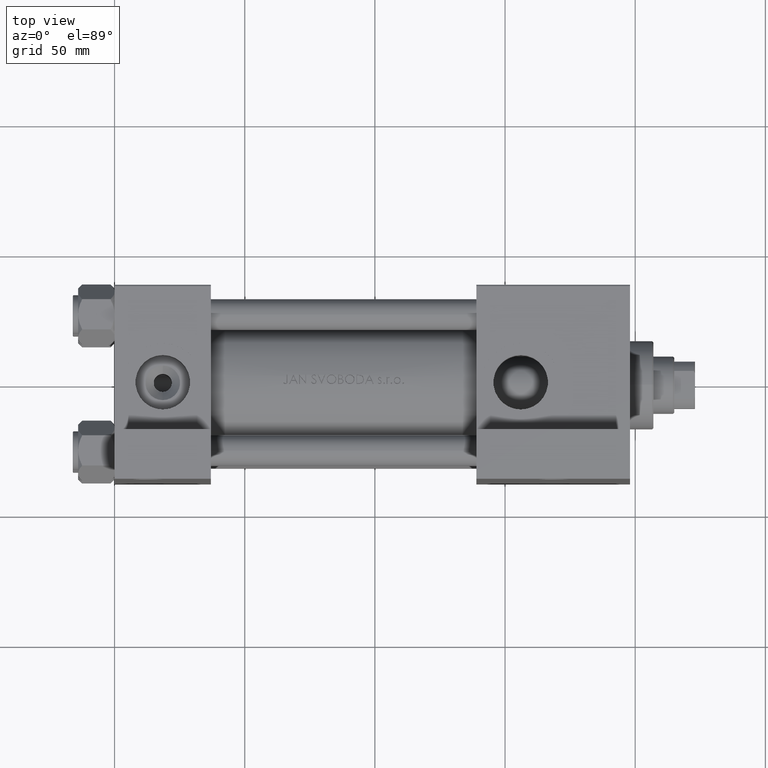
[diagram: clean part render]
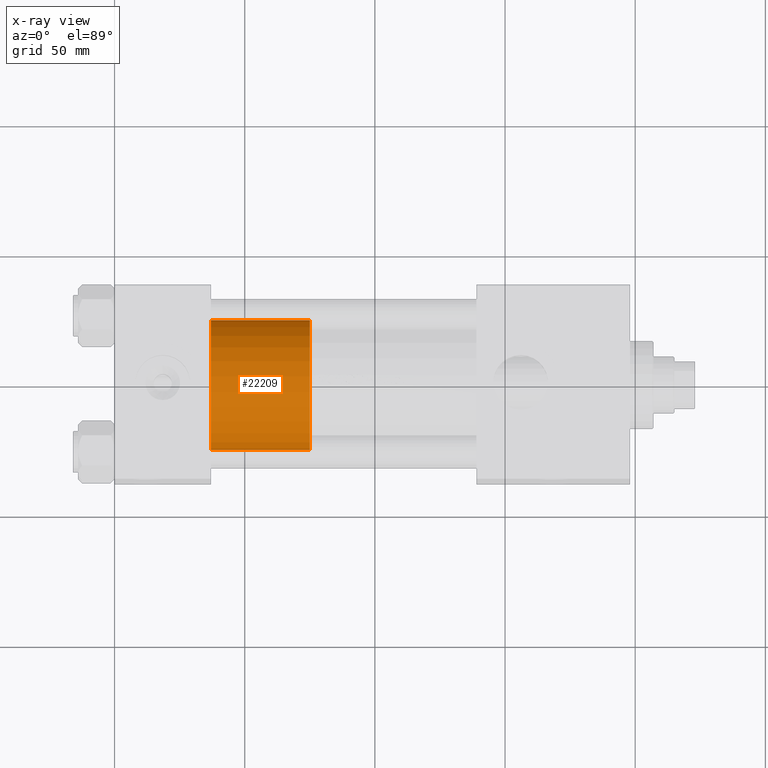
[diagram: x-ray — body ghosted, one internal face saturated and labeled with its STEP entity id]
A machine part, top view, then the same camera in x-ray: the body is ghosted and one INTERNAL B-rep face — a face not visible from any outside direction — is saturated and labeled: STEP entity #22209.
In plain terms, the highlighted cylindrical surface (partial cylindrical patch) has radius 25 mm, axis along (-1, 0, 0).
Its self-contained STEP definition (entity closure, byte-faithful):
#479 = LINE ( 'NONE', #3970, #42635 ) ;
#495 = VERTEX_POINT ( 'NONE', #34369 ) ;
#2216 = DIRECTION ( 'NONE',  ( 0.000000000000000000, 0.000000000000000000, 1.000000000000000000 ) ) ;
#2618 = LINE ( 'NONE', #18042, #44235 ) ;
#2786 = DIRECTION ( 'NONE',  ( 0.000000000000000000, 0.000000000000000000, 1.000000000000000000 ) ) ;
#3034 = CARTESIAN_POINT ( 'NONE',  ( 0.000000000000000000, 0.000000000000000000, 38.00000000000000000 ) ) ;
#3625 = ORIENTED_EDGE ( 'NONE', *, *, #8964, .F. ) ;
#3970 = CARTESIAN_POINT ( 'NONE',  ( -25.00000000000000000, 0.000000000000000000, 38.00000000000000000 ) ) ;
#5592 = CARTESIAN_POINT ( 'NONE',  ( 25.00000000000000000, 3.061616997868383043E-15, 0.000000000000000000 ) ) ;
#8195 = FACE_OUTER_BOUND ( 'NONE', #47619, .T. ) ;
#8964 = EDGE_CURVE ( 'NONE', #495, #47917, #37680, .T. ) ;
#9960 = CARTESIAN_POINT ( 'NONE',  ( -25.00000000000000000, 0.000000000000000000, 0.000000000000000000 ) ) ;
#10313 = DIRECTION ( 'NONE',  ( -0.000000000000000000, -0.000000000000000000, -1.000000000000000000 ) ) ;
#10473 = CARTESIAN_POINT ( 'NONE',  ( 25.00000000000000000, 3.061616997868383043E-15, 38.00000000000000000 ) ) ;
#12184 = DIRECTION ( 'NONE',  ( -1.000000000000000000, 0.000000000000000000, 0.000000000000000000 ) ) ;
#14646 = CARTESIAN_POINT ( 'NONE',  ( 0.000000000000000000, 0.000000000000000000, 0.000000000000000000 ) ) ;
#17387 = DIRECTION ( 'NONE',  ( 1.000000000000000000, 0.000000000000000000, 0.000000000000000000 ) ) ;
#18042 = CARTESIAN_POINT ( 'NONE',  ( 25.00000000000000000, 3.061616997868383043E-15, 38.00000000000000000 ) ) ;
#18417 = EDGE_CURVE ( 'NONE', #495, #22041, #479, .T. ) ;
#18818 = EDGE_CURVE ( 'NONE', #47917, #40154, #2618, .T. ) ;
#19133 = DIRECTION ( 'NONE',  ( -0.000000000000000000, -0.000000000000000000, -1.000000000000000000 ) ) ;
#20174 = AXIS2_PLACEMENT_3D ( 'NONE', #3034, #2786, #33143 ) ;
#22041 = VERTEX_POINT ( 'NONE', #9960 ) ;
#22209 = ADVANCED_FACE ( 'NONE', ( #8195 ), #42081, .T. ) ;
#23640 = DIRECTION ( 'NONE',  ( -0.000000000000000000, -0.000000000000000000, -1.000000000000000000 ) ) ;
#24921 = AXIS2_PLACEMENT_3D ( 'NONE', #14646, #2216, #17387 ) ;
#26355 = EDGE_CURVE ( 'NONE', #22041, #40154, #37657, .T. ) ;
#27102 = ORIENTED_EDGE ( 'NONE', *, *, #26355, .T. ) ;
#31351 = CARTESIAN_POINT ( 'NONE',  ( 0.000000000000000000, 0.000000000000000000, 38.00000000000000000 ) ) ;
#33143 = DIRECTION ( 'NONE',  ( 1.000000000000000000, 0.000000000000000000, 0.000000000000000000 ) ) ;
#34369 = CARTESIAN_POINT ( 'NONE',  ( -25.00000000000000000, 0.000000000000000000, 38.00000000000000000 ) ) ;
#34481 = ORIENTED_EDGE ( 'NONE', *, *, #18417, .T. ) ;
#37657 = CIRCLE ( 'NONE', #24921, 25.00000000000000000 ) ;
#37680 = CIRCLE ( 'NONE', #20174, 25.00000000000000000 ) ;
#38332 = AXIS2_PLACEMENT_3D ( 'NONE', #31351, #23640, #12184 ) ;
#40154 = VERTEX_POINT ( 'NONE', #5592 ) ;
#41625 = ORIENTED_EDGE ( 'NONE', *, *, #18818, .F. ) ;
#42081 = CYLINDRICAL_SURFACE ( 'NONE', #38332, 25.00000000000000000 ) ;
#42635 = VECTOR ( 'NONE', #19133, 1000.000000000000000 ) ;
#44235 = VECTOR ( 'NONE', #10313, 1000.000000000000000 ) ;
#47619 = EDGE_LOOP ( 'NONE', ( #41625, #3625, #34481, #27102 ) ) ;
#47917 = VERTEX_POINT ( 'NONE', #10473 ) ;